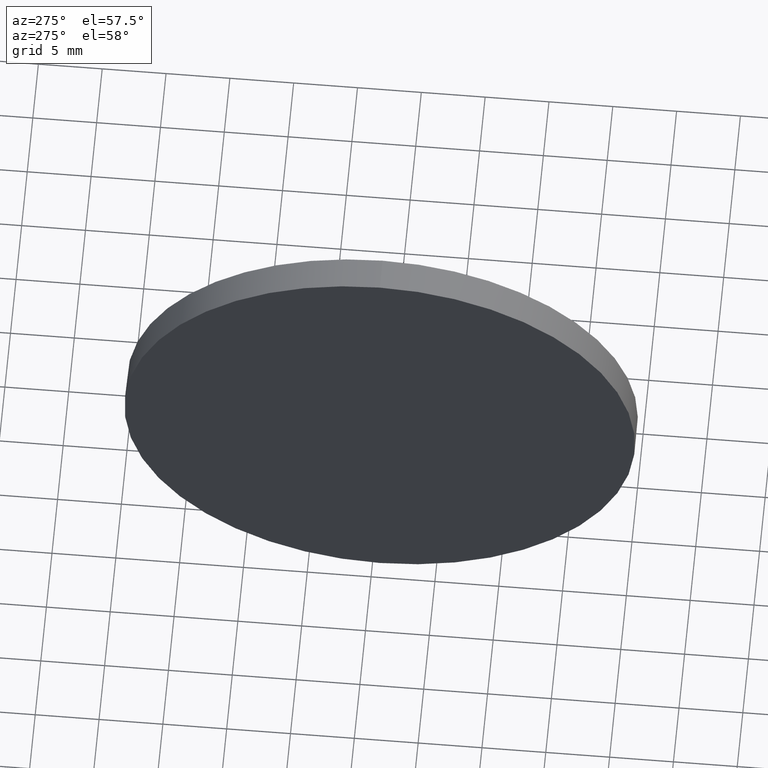
[diagram: clean part render]
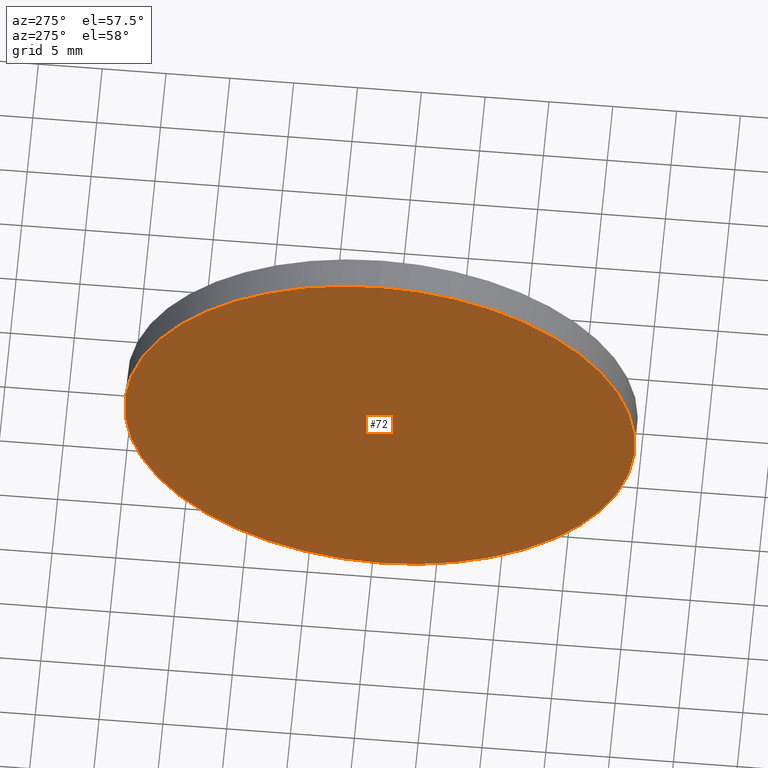
[diagram: same view with one face highlighted and labeled with its STEP entity id]
A machine part, auxiliary view. The second image highlights one B-rep face of the part: STEP entity #72.
In plain terms, the highlighted planar face has unit normal (1, 0, 0).
Its self-contained STEP definition (entity closure, byte-faithful):
#5 = EDGE_CURVE ( 'NONE', #145, #112, #186, .T. ) ;
#15 = CARTESIAN_POINT ( 'NONE',  ( 410.7899099392475400, -30.60755764646728500, 0.0000000000000000000 ) ) ;
#23 = AXIS2_PLACEMENT_3D ( 'NONE', #15, #173, #115 ) ;
#53 = CARTESIAN_POINT ( 'NONE',  ( 410.7899099392475400, -30.60755764646728500, 0.0000000000000000000 ) ) ;
#55 = DIRECTION ( 'NONE',  ( -1.000000000000000000, -0.0000000000000000000, -0.0000000000000000000 ) ) ;
#59 = CARTESIAN_POINT ( 'NONE',  ( 410.7899099392475400, -30.60755764646728100, -20.00000000000000400 ) ) ;
#68 = DIRECTION ( 'NONE',  ( 0.0000000000000000000, 0.0000000000000000000, -1.000000000000000000 ) ) ;
#70 = DIRECTION ( 'NONE',  ( 1.000000000000000000, 0.0000000000000000000, 0.0000000000000000000 ) ) ;
#72 = ADVANCED_FACE ( 'NONE', ( #147 ), #159, .F. ) ;
#73 = AXIS2_PLACEMENT_3D ( 'NONE', #53, #70, #68 ) ;
#79 = ORIENTED_EDGE ( 'NONE', *, *, #153, .T. ) ;
#96 = AXIS2_PLACEMENT_3D ( 'NONE', #119, #55, #138 ) ;
#111 = CIRCLE ( 'NONE', #96, 20.00000000000000400 ) ;
#112 = VERTEX_POINT ( 'NONE', #59 ) ;
#115 = DIRECTION ( 'NONE',  ( 0.0000000000000000000, 0.0000000000000000000, 1.000000000000000000 ) ) ;
#119 = CARTESIAN_POINT ( 'NONE',  ( 410.7899099392475400, -30.60755764646728500, 0.0000000000000000000 ) ) ;
#121 = CARTESIAN_POINT ( 'NONE',  ( 410.7899099392475400, -30.60755764646728500, 20.00000000000000400 ) ) ;
#129 = ORIENTED_EDGE ( 'NONE', *, *, #5, .T. ) ;
#138 = DIRECTION ( 'NONE',  ( 0.0000000000000000000, 0.0000000000000000000, 1.000000000000000000 ) ) ;
#145 = VERTEX_POINT ( 'NONE', #121 ) ;
#147 = FACE_OUTER_BOUND ( 'NONE', #167, .T. ) ;
#153 = EDGE_CURVE ( 'NONE', #112, #145, #111, .T. ) ;
#159 = PLANE ( 'NONE',  #73 ) ;
#167 = EDGE_LOOP ( 'NONE', ( #129, #79 ) ) ;
#173 = DIRECTION ( 'NONE',  ( -1.000000000000000000, -0.0000000000000000000, -0.0000000000000000000 ) ) ;
#186 = CIRCLE ( 'NONE', #23, 20.00000000000000400 ) ;